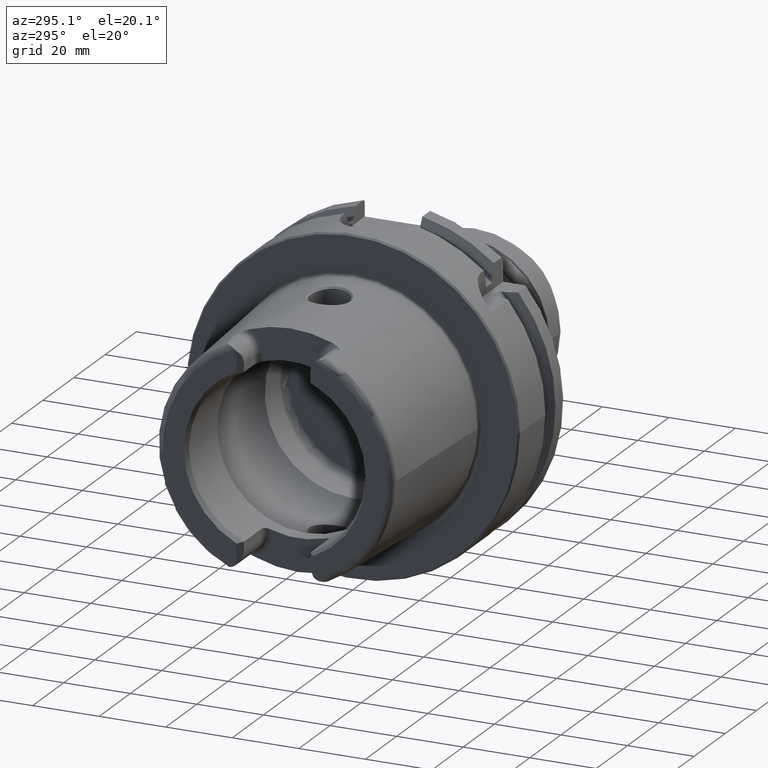
[diagram: clean part render]
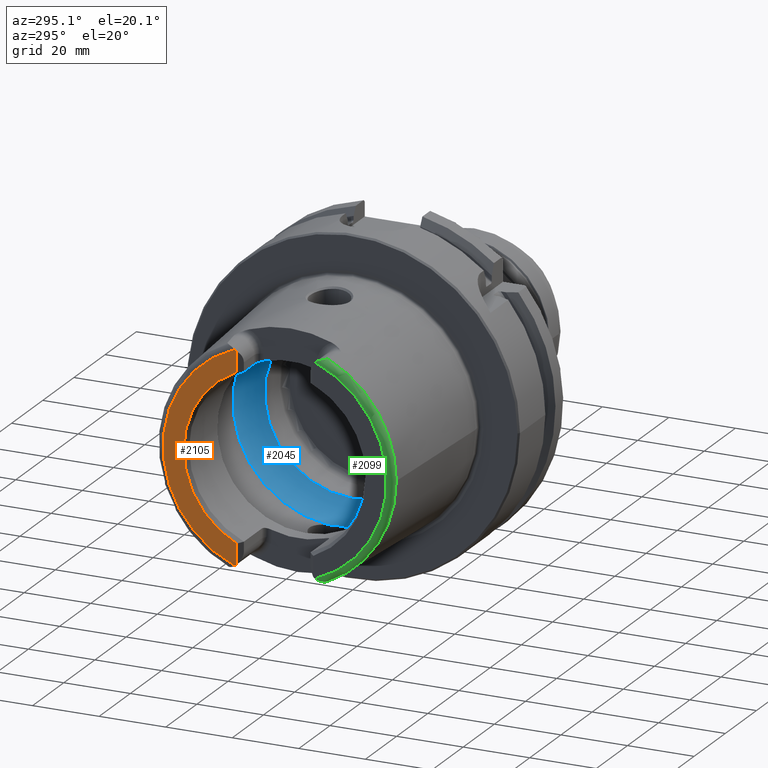
[diagram: same view with three faces highlighted in distinct colors, each labeled with its STEP entity id]
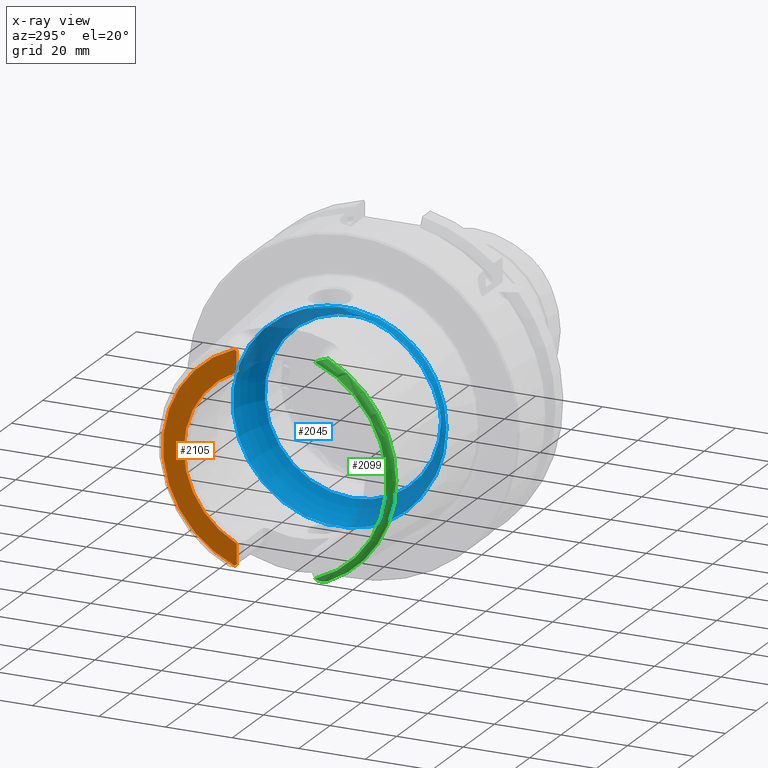
[diagram: x-ray of the same camera — body ghosted, the three highlighted faces saturated]
A machine part, auxiliary view with three faces highlighted in distinct colors.
The next image is the same camera in x-ray (body ghosted, the three faces saturated) — at least one of them is partly hidden behind the body in this view.
Their STEP definitions:

[orange] entity #2105 — the highlighted planar face has unit normal (-1, 0, 0).
#135=PLANE('',#2365);
#284=FACE_OUTER_BOUND('',#413,.T.);
#413=EDGE_LOOP('',(#1865,#1866,#1867,#1868,#1869,#1870));
#463=LINE('',#3173,#572);
#475=LINE('',#3284,#584);
#572=VECTOR('',#2547,10.);
#584=VECTOR('',#2607,10.);
#689=CIRCLE('',#2207,4.88);
#700=CIRCLE('',#2232,4.88);
#764=CIRCLE('',#2357,27.3660254037844);
#765=CIRCLE('',#2361,33.6001839277785);
#831=VERTEX_POINT('',#3166);
#834=VERTEX_POINT('',#3171);
#837=VERTEX_POINT('',#3181);
#858=VERTEX_POINT('',#3281);
#859=VERTEX_POINT('',#3283);
#864=VERTEX_POINT('',#3302);
#1057=EDGE_CURVE('',#834,#831,#463,.T.);
#1061=EDGE_CURVE('',#837,#831,#689,.T.);
#1088=EDGE_CURVE('',#858,#859,#475,.T.);
#1095=EDGE_CURVE('',#858,#864,#700,.T.);
#1283=EDGE_CURVE('',#859,#834,#764,.T.);
#1285=EDGE_CURVE('',#837,#864,#765,.T.);
#1865=ORIENTED_EDGE('',*,*,#1057,.F.);
#1866=ORIENTED_EDGE('',*,*,#1283,.F.);
#1867=ORIENTED_EDGE('',*,*,#1088,.F.);
#1868=ORIENTED_EDGE('',*,*,#1095,.T.);
#1869=ORIENTED_EDGE('',*,*,#1285,.F.);
#1870=ORIENTED_EDGE('',*,*,#1061,.T.);
#2105=ADVANCED_FACE('',(#284),#135,.T.);
#2207=AXIS2_PLACEMENT_3D('',#3182,#2555,#2556);
#2232=AXIS2_PLACEMENT_3D('',#3315,#2616,#2617);
#2357=AXIS2_PLACEMENT_3D('',#4498,#2928,#2929);
#2361=AXIS2_PLACEMENT_3D('',#4503,#2937,#2938);
#2365=AXIS2_PLACEMENT_3D('',#4510,#2946,#2947);
#2547=DIRECTION('',(0.,0.,-1.));
#2555=DIRECTION('center_axis',(-1.,0.,0.));
#2556=DIRECTION('ref_axis',(0.,-0.477884921181368,0.878422450821629));
#2607=DIRECTION('',(0.,0.,-1.));
#2616=DIRECTION('center_axis',(-1.,0.,0.));
#2617=DIRECTION('ref_axis',(0.,1.,0.));
#2928=DIRECTION('center_axis',(-1.,0.,0.));
#2929=DIRECTION('ref_axis',(0.,-1.,0.));
#2937=DIRECTION('center_axis',(1.,0.,0.));
#2938=DIRECTION('ref_axis',(0.,0.,-1.));
#2946=DIRECTION('center_axis',(-1.,0.,0.));
#2947=DIRECTION('ref_axis',(0.,0.,1.));
#3166=CARTESIAN_POINT('',(-50.,11.51,-30.8899431813596));
#3171=CARTESIAN_POINT('',(-50.,11.51,-24.8277918148307));
#3173=CARTESIAN_POINT('',(-50.,11.51,-10.));
#3181=CARTESIAN_POINT('',(-50.,12.0743049948301,-31.355757348091));
#3182=CARTESIAN_POINT('Origin',(-50.,14.89,-27.37));
#3281=CARTESIAN_POINT('',(-50.,11.51,30.8899431813596));
#3283=CARTESIAN_POINT('',(-50.,11.51,24.8277918148307));
#3284=CARTESIAN_POINT('',(-50.,11.51,13.685));
#3302=CARTESIAN_POINT('',(-50.,12.0743049948301,31.355757348091));
#3315=CARTESIAN_POINT('Origin',(-50.,14.89,27.37));
#4498=CARTESIAN_POINT('Origin',(-50.,0.,0.));
#4503=CARTESIAN_POINT('Origin',(-50.,0.,0.));
#4510=CARTESIAN_POINT('Origin',(-50.,33.6001839277785,0.));

[blue] entity #2045 — the highlighted toroidal blend (fillet) surface has major radius 19.5 mm and minor (blend) radius 12 mm.
#48=B_SPLINE_CURVE_WITH_KNOTS('',3,(#3637,#3638,#3639,#3640,#3641,#3642,
#3643,#3644,#3645,#3646),.UNSPECIFIED.,.F.,.F.,(4,2,2,2,4),(-0.606113644645353,
-0.532141714710631,-0.407956541554012,-0.344441109025195,-0.303157612487306),
 .UNSPECIFIED.);
#50=B_SPLINE_CURVE_WITH_KNOTS('',3,(#3679,#3680,#3681,#3682,#3683,#3684,
#3685,#3686,#3687,#3688),.UNSPECIFIED.,.F.,.F.,(4,2,2,2,4),(-0.303157612487306,
-0.297161587155601,-0.247817233363509,-0.174446982686599,0.),
 .UNSPECIFIED.);
#53=B_SPLINE_CURVE_WITH_KNOTS('',3,(#3829,#3830,#3831,#3832,#3833,#3834,
#3835,#3836,#3837,#3838),.UNSPECIFIED.,.F.,.F.,(4,2,2,2,4),(-0.606113644645388,
-0.532141714710621,-0.407956541553997,-0.344441109025146,-0.303157612487227),
 .UNSPECIFIED.);
#55=B_SPLINE_CURVE_WITH_KNOTS('',3,(#3871,#3872,#3873,#3874,#3875,#3876,
#3877,#3878,#3879,#3880),.UNSPECIFIED.,.F.,.F.,(4,2,2,2,4),(-0.303157612487227,
-0.297161587155532,-0.247817233363497,-0.174446982686607,0.),
 .UNSPECIFIED.);
#163=TOROIDAL_SURFACE('',#2249,19.5,12.);
#224=FACE_OUTER_BOUND('',#352,.T.);
#352=EDGE_LOOP('',(#1529,#1530,#1531,#1532,#1533,#1534,#1535,#1536,#1537,
#1538,#1539));
#707=CIRCLE('',#2244,31.5);
#710=CIRCLE('',#2247,31.5);
#711=CIRCLE('',#2248,31.5);
#712=CIRCLE('',#2250,26.5);
#713=CIRCLE('',#2251,26.5);
#714=CIRCLE('',#2252,12.);
#882=VERTEX_POINT('',#3634);
#883=VERTEX_POINT('',#3636);
#884=VERTEX_POINT('',#3647);
#887=VERTEX_POINT('',#3827);
#888=VERTEX_POINT('',#3828);
#889=VERTEX_POINT('',#3839);
#890=VERTEX_POINT('',#3883);
#893=VERTEX_POINT('',#3893);
#894=VERTEX_POINT('',#3894);
#1120=EDGE_CURVE('',#883,#882,#48,.T.);
#1122=EDGE_CURVE('',#882,#884,#50,.T.);
#1126=EDGE_CURVE('',#887,#888,#53,.T.);
#1128=EDGE_CURVE('',#888,#889,#55,.T.);
#1130=EDGE_CURVE('',#890,#887,#707,.T.);
#1134=EDGE_CURVE('',#884,#890,#710,.T.);
#1135=EDGE_CURVE('',#889,#883,#711,.T.);
#1136=EDGE_CURVE('',#893,#894,#712,.T.);
#1137=EDGE_CURVE('',#894,#893,#713,.T.);
#1138=EDGE_CURVE('',#894,#882,#714,.T.);
#1529=ORIENTED_EDGE('',*,*,#1136,.F.);
#1530=ORIENTED_EDGE('',*,*,#1137,.F.);
#1531=ORIENTED_EDGE('',*,*,#1138,.T.);
#1532=ORIENTED_EDGE('',*,*,#1122,.T.);
#1533=ORIENTED_EDGE('',*,*,#1134,.T.);
#1534=ORIENTED_EDGE('',*,*,#1130,.T.);
#1535=ORIENTED_EDGE('',*,*,#1126,.T.);
#1536=ORIENTED_EDGE('',*,*,#1128,.T.);
#1537=ORIENTED_EDGE('',*,*,#1135,.T.);
#1538=ORIENTED_EDGE('',*,*,#1120,.T.);
#1539=ORIENTED_EDGE('',*,*,#1138,.F.);
#2045=ADVANCED_FACE('',(#224),#163,.F.);
#2244=AXIS2_PLACEMENT_3D('',#3884,#2647,#2648);
#2247=AXIS2_PLACEMENT_3D('',#3890,#2654,#2655);
#2248=AXIS2_PLACEMENT_3D('',#3891,#2656,#2657);
#2249=AXIS2_PLACEMENT_3D('',#3892,#2658,#2659);
#2250=AXIS2_PLACEMENT_3D('',#3895,#2660,#2661);
#2251=AXIS2_PLACEMENT_3D('',#3896,#2662,#2663);
#2252=AXIS2_PLACEMENT_3D('',#3897,#2664,#2665);
#2647=DIRECTION('center_axis',(-1.,0.,0.));
#2648=DIRECTION('ref_axis',(0.,0.,1.));
#2654=DIRECTION('center_axis',(-1.,0.,0.));
#2655=DIRECTION('ref_axis',(0.,0.,1.));
#2656=DIRECTION('center_axis',(-1.,0.,0.));
#2657=DIRECTION('ref_axis',(0.,0.,1.));
#2658=DIRECTION('center_axis',(-1.,0.,0.));
#2659=DIRECTION('ref_axis',(0.,0.,1.));
#2660=DIRECTION('center_axis',(-1.,0.,0.));
#2661=DIRECTION('ref_axis',(0.,0.,1.));
#2662=DIRECTION('center_axis',(-1.,0.,0.));
#2663=DIRECTION('ref_axis',(0.,0.,1.));
#2664=DIRECTION('center_axis',(0.,1.,-1.22464679914735E-16));
#2665=DIRECTION('ref_axis',(0.,-1.22464679914735E-16,-1.));
#3634=CARTESIAN_POINT('',(-9.,8.53116613017712E-16,-31.4767398822284));
#3636=CARTESIAN_POINT('',(-9.74679434480896,2.89893607109041,-31.3663222207471));
#3637=CARTESIAN_POINT('Ctrl Pts',(-9.74679434480898,2.89893607109041,-31.3663222207471));
#3638=CARTESIAN_POINT('Ctrl Pts',(-9.62803941549252,2.68373847757038,-31.3862111979079));
#3639=CARTESIAN_POINT('Ctrl Pts',(-9.52250794022164,2.46123932380009,-31.4027818190648));
#3640=CARTESIAN_POINT('Ctrl Pts',(-9.27707880675082,1.84905941644996,-31.4398086116956));
#3641=CARTESIAN_POINT('Ctrl Pts',(-9.16318715371328,1.45014848778478,-31.4552463037839));
#3642=CARTESIAN_POINT('Ctrl Pts',(-9.05448554629564,0.83406948853474,-31.4697090180031));
#3643=CARTESIAN_POINT('Ctrl Pts',(-9.02875508102837,0.623753972628784,-31.4730355369691));
#3644=CARTESIAN_POINT('Ctrl Pts',(-9.00473516300901,0.275210595137741,-31.4761342948647));
#3645=CARTESIAN_POINT('Ctrl Pts',(-9.,0.13762179988616,-31.4767398822284));
#3646=CARTESIAN_POINT('Ctrl Pts',(-9.,9.71445146547012E-16,-31.4767398822284));
#3647=CARTESIAN_POINT('',(-9.74679434480896,-2.89893607109041,-31.3663222207471));
#3679=CARTESIAN_POINT('Ctrl Pts',(-9.,9.83483832277069E-16,-31.4767398822284));
#3680=CARTESIAN_POINT('Ctrl Pts',(-9.,-0.0199882245331354,-31.4767398822284));
#3681=CARTESIAN_POINT('Ctrl Pts',(-9.00009988237686,-0.0399771452902417,
-31.4767270717783));
#3682=CARTESIAN_POINT('Ctrl Pts',(-9.00194380057016,-0.224464346212316,
-31.4764905359115));
#3683=CARTESIAN_POINT('Ctrl Pts',(-9.01035297969853,-0.388827878343727,
-31.4754151841588));
#3684=CARTESIAN_POINT('Ctrl Pts',(-9.0480310904853,-0.796171644009328,-31.4705320701686));
#3685=CARTESIAN_POINT('Ctrl Pts',(-9.08543037238412,-1.03809779370842,-31.4656619259797));
#3686=CARTESIAN_POINT('Ctrl Pts',(-9.26119500081336,-1.84501079512327,-31.441850680052));
#3687=CARTESIAN_POINT('Ctrl Pts',(-9.4667592962906,-2.39148034786879,-31.4132222586341));
#3688=CARTESIAN_POINT('Ctrl Pts',(-9.74679434480898,-2.89893607109041,-31.3663222207471));
#3827=CARTESIAN_POINT('',(-9.74679434480896,-2.89893607109042,31.3663222207471));
#3828=CARTESIAN_POINT('',(-8.99999999999999,7.8372767397864E-16,31.4767398822284));
#3829=CARTESIAN_POINT('Ctrl Pts',(-9.74679434480898,-2.89893607109042,31.3663222207471));
#3830=CARTESIAN_POINT('Ctrl Pts',(-9.62803941549257,-2.6837384775705,31.3862111979079));
#3831=CARTESIAN_POINT('Ctrl Pts',(-9.52250794022172,-2.46123932380032,31.4027818190648));
#3832=CARTESIAN_POINT('Ctrl Pts',(-9.27707880675083,-1.84905941645004,31.4398086116956));
#3833=CARTESIAN_POINT('Ctrl Pts',(-9.16318715371328,-1.45014848778485,31.4552463037839));
#3834=CARTESIAN_POINT('Ctrl Pts',(-9.05448554629561,-0.834069488534672,
31.4697090180031));
#3835=CARTESIAN_POINT('Ctrl Pts',(-9.02875508102836,-0.623753972628598,
31.4730355369691));
#3836=CARTESIAN_POINT('Ctrl Pts',(-9.00473516300902,-0.275210595137865,
31.4761342948647));
#3837=CARTESIAN_POINT('Ctrl Pts',(-8.99999999999999,-0.137621799886392,
31.4767398822284));
#3838=CARTESIAN_POINT('Ctrl Pts',(-8.99999999999999,9.0205620750794E-16,
31.4767398822284));
#3839=CARTESIAN_POINT('',(-9.74679434480896,2.89893607109042,31.3663222207471));
#3871=CARTESIAN_POINT('Ctrl Pts',(-8.99999999999999,8.7920239009422E-16,
31.4767398822284));
#3872=CARTESIAN_POINT('Ctrl Pts',(-8.99999999999999,0.0199882245331231,
31.4767398822284));
#3873=CARTESIAN_POINT('Ctrl Pts',(-9.00009988237684,0.0399771452902225,
31.4767270717783));
#3874=CARTESIAN_POINT('Ctrl Pts',(-9.00194380057014,0.224464346212396,31.4764905359115));
#3875=CARTESIAN_POINT('Ctrl Pts',(-9.01035297969852,0.388827878343765,31.4754151841588));
#3876=CARTESIAN_POINT('Ctrl Pts',(-9.0480310904853,0.79617164400948,31.4705320701686));
#3877=CARTESIAN_POINT('Ctrl Pts',(-9.08543037238414,1.03809779370849,31.4656619259797));
#3878=CARTESIAN_POINT('Ctrl Pts',(-9.26119500081334,1.84501079512323,31.441850680052));
#3879=CARTESIAN_POINT('Ctrl Pts',(-9.46675929629059,2.39148034786878,31.4132222586341));
#3880=CARTESIAN_POINT('Ctrl Pts',(-9.74679434480898,2.89893607109043,31.3663222207471));
#3883=CARTESIAN_POINT('',(-9.74679434480896,-31.5,3.85763741731416E-15));
#3884=CARTESIAN_POINT('Origin',(-9.74679434480896,0.,0.));
#3890=CARTESIAN_POINT('Origin',(-9.74679434480896,0.,0.));
#3891=CARTESIAN_POINT('Origin',(-9.74679434480896,0.,0.));
#3892=CARTESIAN_POINT('Origin',(-9.74679434480896,0.,0.));
#3893=CARTESIAN_POINT('',(0.,-26.5,3.24531401774049E-15));
#3894=CARTESIAN_POINT('',(0.,-3.24531401774049E-15,-26.5));
#3895=CARTESIAN_POINT('Origin',(0.,0.,0.));
#3896=CARTESIAN_POINT('Origin',(0.,0.,0.));
#3897=CARTESIAN_POINT('Origin',(-9.74679434480896,-2.38806125833734E-15,
-19.5));

[green] entity #2099 — the highlighted toroidal blend (fillet) surface has major radius 33.6002 mm and minor (blend) radius 2 mm.
#33=B_SPLINE_CURVE_WITH_KNOTS('',3,(#3257,#3258,#3259,#3260,#3261,#3262,
#3263,#3264,#3265,#3266,#3267,#3268),.UNSPECIFIED.,.F.,.F.,(4,2,2,2,2,4),
(-0.744571126726518,-0.701342830888641,-0.656522678464628,-0.531122919946975,
-0.406784567241786,-0.320835419118986),.UNSPECIFIED.);
#84=B_SPLINE_CURVE_WITH_KNOTS('',3,(#4484,#4485,#4486,#4487,#4488,#4489,
#4490,#4491,#4492,#4493,#4494,#4495),.UNSPECIFIED.,.F.,.F.,(4,2,2,2,2,4),
(-0.330531435638092,-0.267908000768824,-0.159978118105095,-0.0786368985358016,
-0.0319888850382436,0.),.UNSPECIFIED.);
#178=TOROIDAL_SURFACE('',#2354,33.6001839277785,2.);
#278=FACE_OUTER_BOUND('',#407,.T.);
#407=EDGE_LOOP('',(#1824,#1825,#1826,#1827,#1828));
#696=CIRCLE('',#2220,33.6001839277785);
#702=CIRCLE('',#2236,35.5976786130245);
#706=CIRCLE('',#2240,35.5976786130245);
#849=VERTEX_POINT('',#3238);
#850=VERTEX_POINT('',#3240);
#855=VERTEX_POINT('',#3256);
#870=VERTEX_POINT('',#3475);
#871=VERTEX_POINT('',#3477);
#1076=EDGE_CURVE('',#850,#849,#696,.T.);
#1084=EDGE_CURVE('',#855,#850,#33,.T.);
#1104=EDGE_CURVE('',#870,#871,#702,.T.);
#1117=EDGE_CURVE('',#855,#870,#706,.T.);
#1281=EDGE_CURVE('',#849,#871,#84,.T.);
#1824=ORIENTED_EDGE('',*,*,#1084,.T.);
#1825=ORIENTED_EDGE('',*,*,#1076,.T.);
#1826=ORIENTED_EDGE('',*,*,#1281,.T.);
#1827=ORIENTED_EDGE('',*,*,#1104,.F.);
#1828=ORIENTED_EDGE('',*,*,#1117,.F.);
#2099=ADVANCED_FACE('',(#278),#178,.T.);
#2220=AXIS2_PLACEMENT_3D('',#3241,#2584,#2585);
#2236=AXIS2_PLACEMENT_3D('',#3478,#2628,#2629);
#2240=AXIS2_PLACEMENT_3D('',#3605,#2636,#2637);
#2354=AXIS2_PLACEMENT_3D('',#4483,#2922,#2923);
#2584=DIRECTION('center_axis',(1.,0.,0.));
#2585=DIRECTION('ref_axis',(0.,0.,-1.));
#2628=DIRECTION('center_axis',(1.,0.,0.));
#2629=DIRECTION('ref_axis',(0.,0.,-1.));
#2636=DIRECTION('center_axis',(1.,0.,0.));
#2637=DIRECTION('ref_axis',(0.,0.,-1.));
#2922=DIRECTION('center_axis',(1.,0.,0.));
#2923=DIRECTION('ref_axis',(0.,0.,-1.));
#3238=CARTESIAN_POINT('',(-50.,-12.0743049948301,-31.355757348091));
#3240=CARTESIAN_POINT('',(-50.,-12.0743049948301,31.355757348091));
#3241=CARTESIAN_POINT('Origin',(-50.,0.,0.));
#3256=CARTESIAN_POINT('',(-48.1000748840304,-15.0787152148571,32.2463497175327));
#3257=CARTESIAN_POINT('Ctrl Pts',(-48.1000748840304,-15.0787152148571,32.2463497175327));
#3258=CARTESIAN_POINT('Ctrl Pts',(-48.2106037175751,-15.0644627457708,32.2469012894916));
#3259=CARTESIAN_POINT('Ctrl Pts',(-48.3154292138326,-15.0273539899824,32.2483385926998));
#3260=CARTESIAN_POINT('Ctrl Pts',(-48.5163157198425,-14.9224481921473,32.2501843906849));
#3261=CARTESIAN_POINT('Ctrl Pts',(-48.6121978837474,-14.8534224082598,32.2504380645671));
#3262=CARTESIAN_POINT('Ctrl Pts',(-48.945264184207,-14.5689466462258,32.2439376039327));
#3263=CARTESIAN_POINT('Ctrl Pts',(-49.1880723127852,-14.2607780319834,32.2227822574558));
#3264=CARTESIAN_POINT('Ctrl Pts',(-49.6101150709732,-13.5547183211213,32.0774653757186));
#3265=CARTESIAN_POINT('Ctrl Pts',(-49.7793847368059,-13.1765954395989,31.957165019384));
#3266=CARTESIAN_POINT('Ctrl Pts',(-49.9574602860506,-12.5580264083439,31.6658578550016));
#3267=CARTESIAN_POINT('Ctrl Pts',(-50.,-12.3091419271059,31.5216553492714));
#3268=CARTESIAN_POINT('Ctrl Pts',(-50.,-12.0743049948301,31.355757348091));
#3475=CARTESIAN_POINT('',(-48.1000748840304,-35.5976786130245,-4.35945831705167E-15));
#3477=CARTESIAN_POINT('',(-48.1000748840304,-15.0787152148571,-32.2463497175327));
#3478=CARTESIAN_POINT('Origin',(-48.1000748840304,0.,0.));
#3605=CARTESIAN_POINT('Origin',(-48.1000748840304,0.,0.));
#4483=CARTESIAN_POINT('Origin',(-48.,0.,0.));
#4484=CARTESIAN_POINT('Ctrl Pts',(-50.,-12.0743049948301,-31.355757348091));
#4485=CARTESIAN_POINT('Ctrl Pts',(-50.,-12.2858381230511,-31.5051926299064));
#4486=CARTESIAN_POINT('Ctrl Pts',(-49.9653696826563,-12.5170331398669,-31.6430588255455));
#4487=CARTESIAN_POINT('Ctrl Pts',(-49.7810065498998,-13.1911222585011,-31.9692156023964));
#4488=CARTESIAN_POINT('Ctrl Pts',(-49.5806767805337,-13.6194685503754,-32.0969374367804));
#4489=CARTESIAN_POINT('Ctrl Pts',(-49.1716377200869,-14.2730899346346,-32.2192774131036));
#4490=CARTESIAN_POINT('Ctrl Pts',(-48.9774936618895,-14.5201969661755,-32.2395201073332));
#4491=CARTESIAN_POINT('Ctrl Pts',(-48.6675943633755,-14.8125911006811,-32.2505512851489));
#4492=CARTESIAN_POINT('Ctrl Pts',(-48.5398374959924,-14.912197389574,-32.2504544601106));
#4493=CARTESIAN_POINT('Ctrl Pts',(-48.3063803700173,-15.0305209025154,-32.2482139663407));
#4494=CARTESIAN_POINT('Ctrl Pts',(-48.2058276135777,-15.0650786147019,-32.2468774553032));
#4495=CARTESIAN_POINT('Ctrl Pts',(-48.1000748840304,-15.0787152148571,-32.2463497175327));